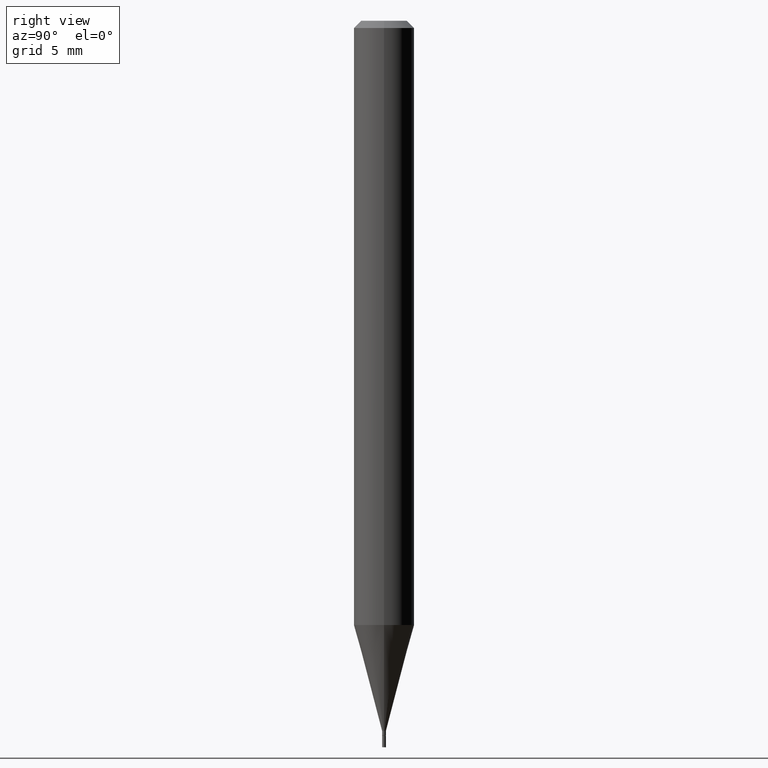
[diagram: clean part render]
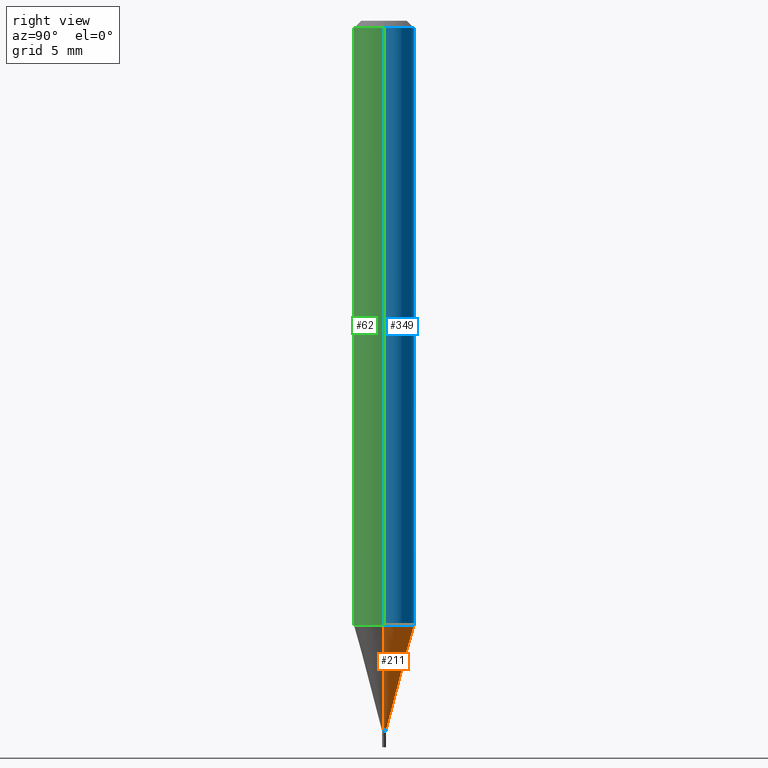
[diagram: same view with three faces highlighted in distinct colors, each labeled with its STEP entity id]
A machine part, right view with three faces highlighted in distinct colors.
Their STEP definitions:

[orange] entity #211 — the highlighted conical surface has half-angle 15 deg.
#8 = EDGE_LOOP ( 'NONE', ( #96, #397, #442, #454 ) ) ;
#16 = CARTESIAN_POINT ( 'NONE',  ( 3.051150360636458226E-29, -4.356234076354940631E-15, -1.247675027757221056 ) ) ;
#27 = CARTESIAN_POINT ( 'NONE',  ( 3.585057269867410650E-29, -5.118511642744051990E-15, -1.466000000000000192 ) ) ;
#52 = EDGE_CURVE ( 'NONE', #179, #205, #263, .T. ) ;
#92 = CONICAL_SURFACE ( 'NONE', #333, 0.003999999999999922021, 0.2617993877991499074 ) ;
#96 = ORIENTED_EDGE ( 'NONE', *, *, #119, .T. ) ;
#119 = EDGE_CURVE ( 'NONE', #179, #276, #316, .T. ) ;
#125 = EDGE_CURVE ( 'NONE', #205, #430, #153, .T. ) ;
#139 = CARTESIAN_POINT ( 'NONE',  ( 3.585057269867410650E-29, -5.118511642744051990E-15, -1.466000000000000192 ) ) ;
#153 = CIRCLE ( 'NONE', #279, 0.06250000000000000000 ) ;
#172 = DIRECTION ( 'NONE',  ( 1.000000000000000000, -6.982962677686225690E-15, 0.000000000000000000 ) ) ;
#173 = FACE_OUTER_BOUND ( 'NONE', #8, .T. ) ;
#179 = VERTEX_POINT ( 'NONE', #394 ) ;
#205 = VERTEX_POINT ( 'NONE', #356 ) ;
#211 = ADVANCED_FACE ( 'NONE', ( #173 ), #92, .T. ) ;
#216 = DIRECTION ( 'NONE',  ( 0.2588190451025211836, 1.565188264969622559E-15, 0.9659258262890679791 ) ) ;
#246 = CARTESIAN_POINT ( 'NONE',  ( -0.003999999999999922021, -4.501117399909262592E-15, -1.466000000000000192 ) ) ;
#250 = DIRECTION ( 'NONE',  ( 1.000000000000000000, -6.982962677686270655E-15, 0.000000000000000000 ) ) ;
#257 = CARTESIAN_POINT ( 'NONE',  ( -0.06250000000000000000, -3.912144866504878015E-15, -1.247675027757221056 ) ) ;
#263 = LINE ( 'NONE', #451, #427 ) ;
#276 = VERTEX_POINT ( 'NONE', #246 ) ;
#279 = AXIS2_PLACEMENT_3D ( 'NONE', #16, #379, #250 ) ;
#305 = DIRECTION ( 'NONE',  ( -0.2588190451025211836, 5.211531920934547886E-15, 0.9659258262890679791 ) ) ;
#306 = EDGE_CURVE ( 'NONE', #276, #430, #360, .T. ) ;
#316 = CIRCLE ( 'NONE', #344, 0.003999999999999922021 ) ;
#333 = AXIS2_PLACEMENT_3D ( 'NONE', #139, #359, #172 ) ;
#337 = DIRECTION ( 'NONE',  ( 1.000000000000000000, -6.982962677686225690E-15, 0.000000000000000000 ) ) ;
#344 = AXIS2_PLACEMENT_3D ( 'NONE', #27, #421, #337 ) ;
#356 = CARTESIAN_POINT ( 'NONE',  ( 0.06250000000000000000, -4.792669243710331512E-15, -1.247675027757221056 ) ) ;
#359 = DIRECTION ( 'NONE',  ( -2.445468806185136597E-29, 3.491481338843145583E-15, 1.000000000000000000 ) ) ;
#360 = LINE ( 'NONE', #390, #456 ) ;
#379 = DIRECTION ( 'NONE',  ( -2.445468806185136597E-29, 3.491481338843145583E-15, 1.000000000000000000 ) ) ;
#390 = CARTESIAN_POINT ( 'NONE',  ( -0.003999999999999922021, -5.090089933313648746E-15, -1.466000000000000192 ) ) ;
#394 = CARTESIAN_POINT ( 'NONE',  ( 0.003999999999999922021, -5.146443493454796047E-15, -1.466000000000000192 ) ) ;
#397 = ORIENTED_EDGE ( 'NONE', *, *, #306, .T. ) ;
#421 = DIRECTION ( 'NONE',  ( -2.445468806185136597E-29, 3.491481338843145583E-15, 1.000000000000000000 ) ) ;
#427 = VECTOR ( 'NONE', #216, 39.37007874015748854 ) ;
#430 = VERTEX_POINT ( 'NONE', #257 ) ;
#442 = ORIENTED_EDGE ( 'NONE', *, *, #125, .F. ) ;
#451 = CARTESIAN_POINT ( 'NONE',  ( 0.003999999999999922021, -5.146443493454796047E-15, -1.466000000000000192 ) ) ;
#454 = ORIENTED_EDGE ( 'NONE', *, *, #52, .F. ) ;
#456 = VECTOR ( 'NONE', #305, 39.37007874015748854 ) ;

[blue] entity #349 — the highlighted cylindrical surface (edge-blend (fillet) strip) has radius 1.5875 mm, axis along (-0, 0, 1).
#4 = VECTOR ( 'NONE', #389, 39.37007874015748143 ) ;
#16 = CARTESIAN_POINT ( 'NONE',  ( 3.051150360636458226E-29, -4.356234076354940631E-15, -1.247675027757221056 ) ) ;
#29 = EDGE_CURVE ( 'NONE', #236, #191, #78, .T. ) ;
#33 = LINE ( 'NONE', #466, #166 ) ;
#43 = DIRECTION ( 'NONE',  ( -2.445468806185136877E-29, 3.491481338843145188E-15, 1.000000000000000000 ) ) ;
#47 = CYLINDRICAL_SURFACE ( 'NONE', #133, 0.06250000000000000000 ) ;
#68 = EDGE_CURVE ( 'NONE', #205, #236, #428, .T. ) ;
#75 = CARTESIAN_POINT ( 'NONE',  ( 0.000000000000000000, 0.000000000000000000, 0.000000000000000000 ) ) ;
#78 = CIRCLE ( 'NONE', #418, 0.06250000000000000000 ) ;
#80 = DIRECTION ( 'NONE',  ( 1.000000000000000000, -6.982962677686266711E-15, 0.000000000000000000 ) ) ;
#125 = EDGE_CURVE ( 'NONE', #205, #430, #153, .T. ) ;
#133 = AXIS2_PLACEMENT_3D ( 'NONE', #75, #255, #284 ) ;
#137 = CARTESIAN_POINT ( 'NONE',  ( 0.06250000000000000000, -4.888073874380388472E-16, -0.01499999999999999944 ) ) ;
#153 = CIRCLE ( 'NONE', #279, 0.06250000000000000000 ) ;
#166 = VECTOR ( 'NONE', #43, 39.37007874015748143 ) ;
#191 = VERTEX_POINT ( 'NONE', #433 ) ;
#205 = VERTEX_POINT ( 'NONE', #356 ) ;
#234 = ORIENTED_EDGE ( 'NONE', *, *, #68, .F. ) ;
#236 = VERTEX_POINT ( 'NONE', #137 ) ;
#250 = DIRECTION ( 'NONE',  ( 1.000000000000000000, -6.982962677686270655E-15, 0.000000000000000000 ) ) ;
#254 = ORIENTED_EDGE ( 'NONE', *, *, #125, .T. ) ;
#255 = DIRECTION ( 'NONE',  ( -2.445468806185136597E-29, 3.491481338843145583E-15, 1.000000000000000000 ) ) ;
#257 = CARTESIAN_POINT ( 'NONE',  ( -0.06250000000000000000, -3.912144866504878015E-15, -1.247675027757221056 ) ) ;
#260 = CARTESIAN_POINT ( 'NONE',  ( 3.668203209277705088E-31, -5.237222008264718399E-17, -0.01499999999999999944 ) ) ;
#268 = ORIENTED_EDGE ( 'NONE', *, *, #29, .F. ) ;
#274 = EDGE_CURVE ( 'NONE', #430, #191, #33, .T. ) ;
#279 = AXIS2_PLACEMENT_3D ( 'NONE', #16, #379, #250 ) ;
#284 = DIRECTION ( 'NONE',  ( 1.000000000000000000, -6.982962677686266711E-15, 4.876176775795935793E-29 ) ) ;
#297 = DIRECTION ( 'NONE',  ( -2.445468806185136597E-29, 3.491481338843145583E-15, 1.000000000000000000 ) ) ;
#349 = ADVANCED_FACE ( 'NONE', ( #405 ), #47, .T. ) ;
#356 = CARTESIAN_POINT ( 'NONE',  ( 0.06250000000000000000, -4.792669243710331512E-15, -1.247675027757221056 ) ) ;
#364 = ORIENTED_EDGE ( 'NONE', *, *, #274, .T. ) ;
#379 = DIRECTION ( 'NONE',  ( -2.445468806185136597E-29, 3.491481338843145583E-15, 1.000000000000000000 ) ) ;
#389 = DIRECTION ( 'NONE',  ( -2.445468806185136877E-29, 3.491481338843145188E-15, 1.000000000000000000 ) ) ;
#405 = FACE_OUTER_BOUND ( 'NONE', #462, .T. ) ;
#418 = AXIS2_PLACEMENT_3D ( 'NONE', #260, #297, #80 ) ;
#428 = LINE ( 'NONE', #465, #4 ) ;
#430 = VERTEX_POINT ( 'NONE', #257 ) ;
#433 = CARTESIAN_POINT ( 'NONE',  ( -0.06250000000000000000, -1.760213938368731436E-15, -0.01499999999999999944 ) ) ;
#462 = EDGE_LOOP ( 'NONE', ( #254, #364, #268, #234 ) ) ;
#465 = CARTESIAN_POINT ( 'NONE',  ( 0.06250000000000000000, -4.364351673553916694E-16, 3.047610484872459871E-30 ) ) ;
#466 = CARTESIAN_POINT ( 'NONE',  ( -0.06250000000000000000, 4.440892098500626162E-16, -3.074334431409316114E-30 ) ) ;

[green] entity #62 — the highlighted cylindrical surface (edge-blend (fillet) strip) has radius 1.5875 mm, axis along (-0, 0, 1).
#4 = VECTOR ( 'NONE', #389, 39.37007874015748143 ) ;
#33 = LINE ( 'NONE', #466, #166 ) ;
#43 = DIRECTION ( 'NONE',  ( -2.445468806185136877E-29, 3.491481338843145188E-15, 1.000000000000000000 ) ) ;
#46 = ORIENTED_EDGE ( 'NONE', *, *, #274, .F. ) ;
#61 = DIRECTION ( 'NONE',  ( 1.000000000000000000, -6.982962677686266711E-15, 0.000000000000000000 ) ) ;
#62 = ADVANCED_FACE ( 'NONE', ( #422 ), #230, .T. ) ;
#68 = EDGE_CURVE ( 'NONE', #205, #236, #428, .T. ) ;
#114 = EDGE_LOOP ( 'NONE', ( #46, #377, #247, #144 ) ) ;
#137 = CARTESIAN_POINT ( 'NONE',  ( 0.06250000000000000000, -4.888073874380388472E-16, -0.01499999999999999944 ) ) ;
#144 = ORIENTED_EDGE ( 'NONE', *, *, #201, .F. ) ;
#166 = VECTOR ( 'NONE', #43, 39.37007874015748143 ) ;
#174 = AXIS2_PLACEMENT_3D ( 'NONE', #235, #275, #61 ) ;
#184 = CIRCLE ( 'NONE', #174, 0.06250000000000000000 ) ;
#191 = VERTEX_POINT ( 'NONE', #433 ) ;
#194 = AXIS2_PLACEMENT_3D ( 'NONE', #347, #303, #233 ) ;
#201 = EDGE_CURVE ( 'NONE', #191, #236, #184, .T. ) ;
#205 = VERTEX_POINT ( 'NONE', #356 ) ;
#230 = CYLINDRICAL_SURFACE ( 'NONE', #194, 0.06250000000000000000 ) ;
#233 = DIRECTION ( 'NONE',  ( 1.000000000000000000, -6.982962677686266711E-15, 4.876176775795935793E-29 ) ) ;
#235 = CARTESIAN_POINT ( 'NONE',  ( 3.668203209277705088E-31, -5.237222008264718399E-17, -0.01499999999999999944 ) ) ;
#236 = VERTEX_POINT ( 'NONE', #137 ) ;
#247 = ORIENTED_EDGE ( 'NONE', *, *, #68, .T. ) ;
#257 = CARTESIAN_POINT ( 'NONE',  ( -0.06250000000000000000, -3.912144866504878015E-15, -1.247675027757221056 ) ) ;
#274 = EDGE_CURVE ( 'NONE', #430, #191, #33, .T. ) ;
#275 = DIRECTION ( 'NONE',  ( -2.445468806185136597E-29, 3.491481338843145583E-15, 1.000000000000000000 ) ) ;
#303 = DIRECTION ( 'NONE',  ( -2.445468806185136597E-29, 3.491481338843145583E-15, 1.000000000000000000 ) ) ;
#345 = CIRCLE ( 'NONE', #450, 0.06250000000000000000 ) ;
#347 = CARTESIAN_POINT ( 'NONE',  ( 0.000000000000000000, 0.000000000000000000, 0.000000000000000000 ) ) ;
#356 = CARTESIAN_POINT ( 'NONE',  ( 0.06250000000000000000, -4.792669243710331512E-15, -1.247675027757221056 ) ) ;
#365 = DIRECTION ( 'NONE',  ( -2.445468806185136597E-29, 3.491481338843145583E-15, 1.000000000000000000 ) ) ;
#373 = DIRECTION ( 'NONE',  ( 1.000000000000000000, -6.982962677686270655E-15, 0.000000000000000000 ) ) ;
#377 = ORIENTED_EDGE ( 'NONE', *, *, #391, .T. ) ;
#389 = DIRECTION ( 'NONE',  ( -2.445468806185136877E-29, 3.491481338843145188E-15, 1.000000000000000000 ) ) ;
#391 = EDGE_CURVE ( 'NONE', #430, #205, #345, .T. ) ;
#406 = CARTESIAN_POINT ( 'NONE',  ( 3.051150360636458226E-29, -4.356234076354940631E-15, -1.247675027757221056 ) ) ;
#422 = FACE_OUTER_BOUND ( 'NONE', #114, .T. ) ;
#428 = LINE ( 'NONE', #465, #4 ) ;
#430 = VERTEX_POINT ( 'NONE', #257 ) ;
#433 = CARTESIAN_POINT ( 'NONE',  ( -0.06250000000000000000, -1.760213938368731436E-15, -0.01499999999999999944 ) ) ;
#450 = AXIS2_PLACEMENT_3D ( 'NONE', #406, #365, #373 ) ;
#465 = CARTESIAN_POINT ( 'NONE',  ( 0.06250000000000000000, -4.364351673553916694E-16, 3.047610484872459871E-30 ) ) ;
#466 = CARTESIAN_POINT ( 'NONE',  ( -0.06250000000000000000, 4.440892098500626162E-16, -3.074334431409316114E-30 ) ) ;